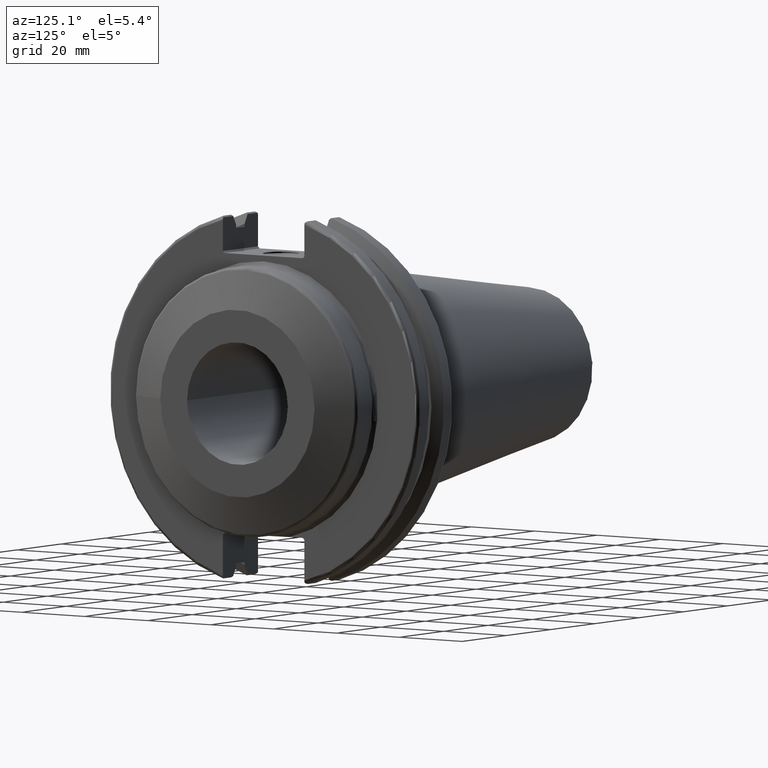
[diagram: clean part render]
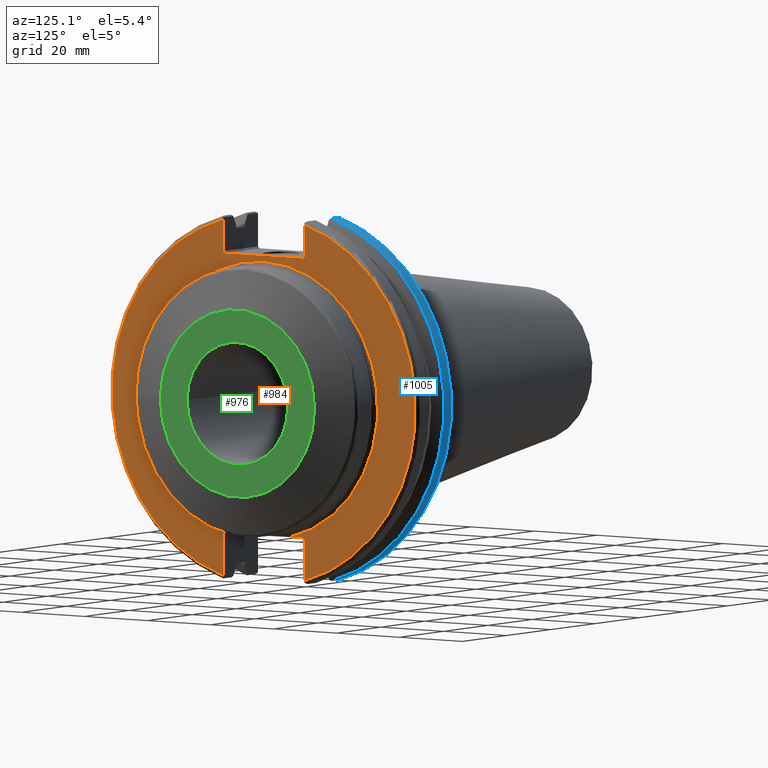
[diagram: same view with three faces highlighted in distinct colors, each labeled with its STEP entity id]
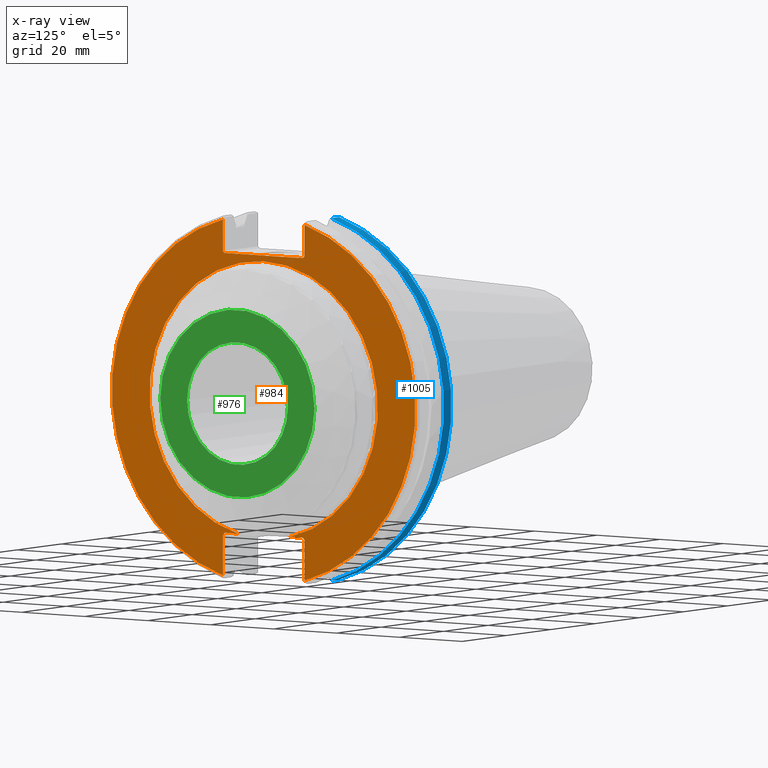
[diagram: x-ray of the same camera — body ghosted, the three highlighted faces saturated]
A machine part, auxiliary view with three faces highlighted in distinct colors.
The next image is the same camera in x-ray (body ghosted, the three faces saturated) — at least one of them is partly hidden behind the body in this view.
Their STEP definitions:

[orange] entity #984 — the highlighted planar face has unit normal (1, 0, 0).
#42=PLANE('',#1087);
#109=LINE('',#1579,#177);
#115=LINE('',#1605,#183);
#116=LINE('',#1606,#184);
#117=LINE('',#1608,#185);
#118=LINE('',#1610,#186);
#119=LINE('',#1612,#187);
#120=LINE('',#1614,#188);
#121=LINE('',#1616,#189);
#122=LINE('',#1620,#190);
#123=LINE('',#1622,#191);
#124=LINE('',#1623,#192);
#177=VECTOR('',#1249,10.);
#183=VECTOR('',#1257,10.);
#184=VECTOR('',#1258,10.);
#185=VECTOR('',#1259,10.);
#186=VECTOR('',#1260,10.);
#187=VECTOR('',#1261,10.);
#188=VECTOR('',#1262,10.);
#189=VECTOR('',#1263,10.);
#190=VECTOR('',#1266,10.);
#191=VECTOR('',#1267,10.);
#192=VECTOR('',#1268,10.);
#254=FACE_OUTER_BOUND('',#314,.T.);
#314=EDGE_LOOP('',(#741,#742,#743,#744,#745,#746,#747,#748,#749,#750,#751,
#752,#753,#754));
#369=CIRCLE('',#1063,36.25);
#381=CIRCLE('',#1083,48.2125);
#383=CIRCLE('',#1088,48.2125);
#417=VERTEX_POINT('',#1462);
#418=VERTEX_POINT('',#1471);
#440=VERTEX_POINT('',#1534);
#441=VERTEX_POINT('',#1541);
#447=VERTEX_POINT('',#1578);
#454=VERTEX_POINT('',#1604);
#455=VERTEX_POINT('',#1607);
#456=VERTEX_POINT('',#1609);
#457=VERTEX_POINT('',#1611);
#458=VERTEX_POINT('',#1613);
#459=VERTEX_POINT('',#1615);
#460=VERTEX_POINT('',#1617);
#461=VERTEX_POINT('',#1619);
#462=VERTEX_POINT('',#1621);
#521=EDGE_CURVE('',#417,#418,#369,.T.);
#548=EDGE_CURVE('',#440,#441,#381,.T.);
#556=EDGE_CURVE('',#447,#441,#109,.T.);
#565=EDGE_CURVE('',#417,#454,#115,.T.);
#566=EDGE_CURVE('',#447,#454,#116,.T.);
#567=EDGE_CURVE('',#440,#455,#117,.T.);
#568=EDGE_CURVE('',#456,#455,#118,.T.);
#569=EDGE_CURVE('',#456,#457,#119,.T.);
#570=EDGE_CURVE('',#458,#457,#120,.T.);
#571=EDGE_CURVE('',#458,#459,#121,.T.);
#572=EDGE_CURVE('',#460,#459,#383,.T.);
#573=EDGE_CURVE('',#460,#461,#122,.T.);
#574=EDGE_CURVE('',#462,#461,#123,.T.);
#575=EDGE_CURVE('',#462,#418,#124,.T.);
#741=ORIENTED_EDGE('',*,*,#521,.F.);
#742=ORIENTED_EDGE('',*,*,#565,.T.);
#743=ORIENTED_EDGE('',*,*,#566,.F.);
#744=ORIENTED_EDGE('',*,*,#556,.T.);
#745=ORIENTED_EDGE('',*,*,#548,.F.);
#746=ORIENTED_EDGE('',*,*,#567,.T.);
#747=ORIENTED_EDGE('',*,*,#568,.F.);
#748=ORIENTED_EDGE('',*,*,#569,.T.);
#749=ORIENTED_EDGE('',*,*,#570,.F.);
#750=ORIENTED_EDGE('',*,*,#571,.T.);
#751=ORIENTED_EDGE('',*,*,#572,.F.);
#752=ORIENTED_EDGE('',*,*,#573,.T.);
#753=ORIENTED_EDGE('',*,*,#574,.F.);
#754=ORIENTED_EDGE('',*,*,#575,.T.);
#984=ADVANCED_FACE('',(#254),#42,.T.);
#1063=AXIS2_PLACEMENT_3D('',#1472,#1186,#1187);
#1083=AXIS2_PLACEMENT_3D('',#1542,#1239,#1240);
#1087=AXIS2_PLACEMENT_3D('',#1603,#1255,#1256);
#1088=AXIS2_PLACEMENT_3D('',#1618,#1264,#1265);
#1186=DIRECTION('center_axis',(1.,0.,0.));
#1187=DIRECTION('ref_axis',(0.,-1.,-1.22464679914735E-16));
#1239=DIRECTION('center_axis',(-1.,0.,0.));
#1240=DIRECTION('ref_axis',(0.,1.,-6.12323399573677E-17));
#1249=DIRECTION('',(0.,0.,-1.));
#1255=DIRECTION('center_axis',(1.,0.,0.));
#1256=DIRECTION('ref_axis',(0.,0.,-1.));
#1257=DIRECTION('',(0.,1.,0.));
#1258=DIRECTION('',(0.,-0.707106781186549,0.707106781186546));
#1259=DIRECTION('',(0.,0.,-1.));
#1260=DIRECTION('',(0.,0.707106781186549,0.707106781186546));
#1261=DIRECTION('',(0.,-1.,0.));
#1262=DIRECTION('',(0.,0.707106781186549,-0.707106781186546));
#1263=DIRECTION('',(0.,0.,1.));
#1264=DIRECTION('center_axis',(-1.,0.,0.));
#1265=DIRECTION('ref_axis',(0.,-1.,1.60812264967664E-16));
#1266=DIRECTION('',(0.,0.,1.));
#1267=DIRECTION('',(0.,-0.707106781186549,-0.707106781186546));
#1268=DIRECTION('',(0.,1.,0.));
#1462=CARTESIAN_POINT('',(19.05,8.21881159292513,-35.306));
#1471=CARTESIAN_POINT('',(19.05,-8.21881159292513,-35.306));
#1472=CARTESIAN_POINT('Origin',(19.05,0.,0.));
#1534=CARTESIAN_POINT('',(19.05,12.95,46.4407434937254));
#1541=CARTESIAN_POINT('',(19.05,12.95,-46.4407434937254));
#1542=CARTESIAN_POINT('Origin',(19.05,0.,0.));
#1578=CARTESIAN_POINT('',(19.05,12.95,-35.806));
#1579=CARTESIAN_POINT('',(19.05,12.95,-17.653));
#1603=CARTESIAN_POINT('Origin',(19.05,0.,0.));
#1604=CARTESIAN_POINT('',(19.05,12.45,-35.306));
#1605=CARTESIAN_POINT('',(19.05,-3.33066907387547E-15,-35.306));
#1606=CARTESIAN_POINT('',(19.05,0.635999999999982,-23.492));
#1607=CARTESIAN_POINT('',(19.05,12.95,38.219));
#1608=CARTESIAN_POINT('',(19.05,12.95,18.8595));
#1609=CARTESIAN_POINT('',(19.05,12.45,37.719));
#1610=CARTESIAN_POINT('',(19.05,0.0327499999999836,25.30175));
#1611=CARTESIAN_POINT('',(19.05,-12.45,37.719));
#1612=CARTESIAN_POINT('',(19.05,0.,37.719));
#1613=CARTESIAN_POINT('',(19.05,-12.95,38.219));
#1614=CARTESIAN_POINT('',(19.05,-0.0327499999999817,25.30175));
#1615=CARTESIAN_POINT('',(19.05,-12.95,46.4407434937254));
#1616=CARTESIAN_POINT('',(19.05,-12.95,18.8595));
#1617=CARTESIAN_POINT('',(19.05,-12.95,-46.4407434937254));
#1618=CARTESIAN_POINT('Origin',(19.05,0.,0.));
#1619=CARTESIAN_POINT('',(19.05,-12.95,-35.806));
#1620=CARTESIAN_POINT('',(19.05,-12.95,-17.653));
#1621=CARTESIAN_POINT('',(19.05,-12.45,-35.306));
#1622=CARTESIAN_POINT('',(19.05,-0.635999999999989,-23.492));
#1623=CARTESIAN_POINT('',(19.05,-3.33066907387547E-15,-35.306));

[blue] entity #1005 — the highlighted cylindrical surface (partial cylindrical patch) has radius 49.2125 mm, axis along (1, 0, 0).
#139=LINE('',#1773,#207);
#153=LINE('',#1832,#221);
#207=VECTOR('',#1309,10.);
#221=VECTOR('',#1361,10.);
#234=CYLINDRICAL_SURFACE('',#1120,49.2125);
#275=FACE_OUTER_BOUND('',#336,.T.);
#336=EDGE_LOOP('',(#868,#869,#870,#871));
#387=CIRCLE('',#1100,49.2125);
#395=CIRCLE('',#1121,49.2125);
#486=VERTEX_POINT('',#1746);
#487=VERTEX_POINT('',#1755);
#488=VERTEX_POINT('',#1772);
#502=VERTEX_POINT('',#1831);
#608=EDGE_CURVE('',#486,#487,#387,.T.);
#611=EDGE_CURVE('',#487,#488,#139,.T.);
#636=EDGE_CURVE('',#502,#486,#153,.T.);
#637=EDGE_CURVE('',#488,#502,#395,.T.);
#868=ORIENTED_EDGE('',*,*,#608,.F.);
#869=ORIENTED_EDGE('',*,*,#636,.F.);
#870=ORIENTED_EDGE('',*,*,#637,.F.);
#871=ORIENTED_EDGE('',*,*,#611,.F.);
#1005=ADVANCED_FACE('',(#275),#234,.T.);
#1100=AXIS2_PLACEMENT_3D('',#1756,#1305,#1306);
#1120=AXIS2_PLACEMENT_3D('',#1830,#1359,#1360);
#1121=AXIS2_PLACEMENT_3D('',#1833,#1362,#1363);
#1305=DIRECTION('center_axis',(-1.,0.,0.));
#1306=DIRECTION('ref_axis',(0.,1.,-6.12323399573677E-17));
#1309=DIRECTION('',(1.,0.,0.));
#1359=DIRECTION('center_axis',(1.,0.,0.));
#1360=DIRECTION('ref_axis',(0.,1.,0.));
#1361=DIRECTION('',(-1.,0.,0.));
#1362=DIRECTION('center_axis',(1.,0.,0.));
#1363=DIRECTION('ref_axis',(0.,0.,-1.));
#1746=CARTESIAN_POINT('',(4.175,13.4317035994433,47.3440544806494));
#1755=CARTESIAN_POINT('',(4.175,13.4317035994433,-47.3440544806494));
#1756=CARTESIAN_POINT('Origin',(4.175,0.,0.));
#1772=CARTESIAN_POINT('',(7.60799096595127,13.4317035994433,-47.3440544806494));
#1773=CARTESIAN_POINT('',(5.39149548297564,13.4317035994433,-47.3440544806494));
#1830=CARTESIAN_POINT('Origin',(5.39149548297564,0.,0.));
#1831=CARTESIAN_POINT('',(7.60799096595127,13.4317035994433,47.3440544806494));
#1832=CARTESIAN_POINT('',(5.39149548297564,13.4317035994433,47.3440544806494));
#1833=CARTESIAN_POINT('Origin',(7.60799096595127,0.,0.));

[green] entity #976 — the highlighted planar face has unit normal (1, 0, 0).
#32=FACE_BOUND('',#305,.T.);
#38=PLANE('',#1069);
#246=FACE_OUTER_BOUND('',#304,.T.);
#304=EDGE_LOOP('',(#690));
#305=EDGE_LOOP('',(#691));
#367=CIRCLE('',#1060,24.5);
#370=CIRCLE('',#1065,16.);
#415=VERTEX_POINT('',#1456);
#419=VERTEX_POINT('',#1482);
#517=EDGE_CURVE('',#415,#415,#367,.T.);
#523=EDGE_CURVE('',#419,#419,#370,.T.);
#690=ORIENTED_EDGE('',*,*,#517,.T.);
#691=ORIENTED_EDGE('',*,*,#523,.T.);
#976=ADVANCED_FACE('',(#246,#32),#38,.T.);
#1060=AXIS2_PLACEMENT_3D('',#1457,#1179,#1180);
#1065=AXIS2_PLACEMENT_3D('',#1483,#1190,#1191);
#1069=AXIS2_PLACEMENT_3D('',#1490,#1199,#1200);
#1179=DIRECTION('center_axis',(1.,0.,0.));
#1180=DIRECTION('ref_axis',(0.,0.,-1.));
#1190=DIRECTION('center_axis',(-1.,0.,0.));
#1191=DIRECTION('ref_axis',(0.,1.,0.));
#1199=DIRECTION('center_axis',(1.,0.,0.));
#1200=DIRECTION('ref_axis',(0.,0.,-1.));
#1456=CARTESIAN_POINT('',(30.9,-24.5,-3.00038465791102E-15));
#1457=CARTESIAN_POINT('Origin',(30.9,0.,0.));
#1482=CARTESIAN_POINT('',(30.9,-16.,1.95943487863577E-15));
#1483=CARTESIAN_POINT('Origin',(30.9,0.,0.));
#1490=CARTESIAN_POINT('Origin',(30.9,-3.88036093967107E-15,0.));